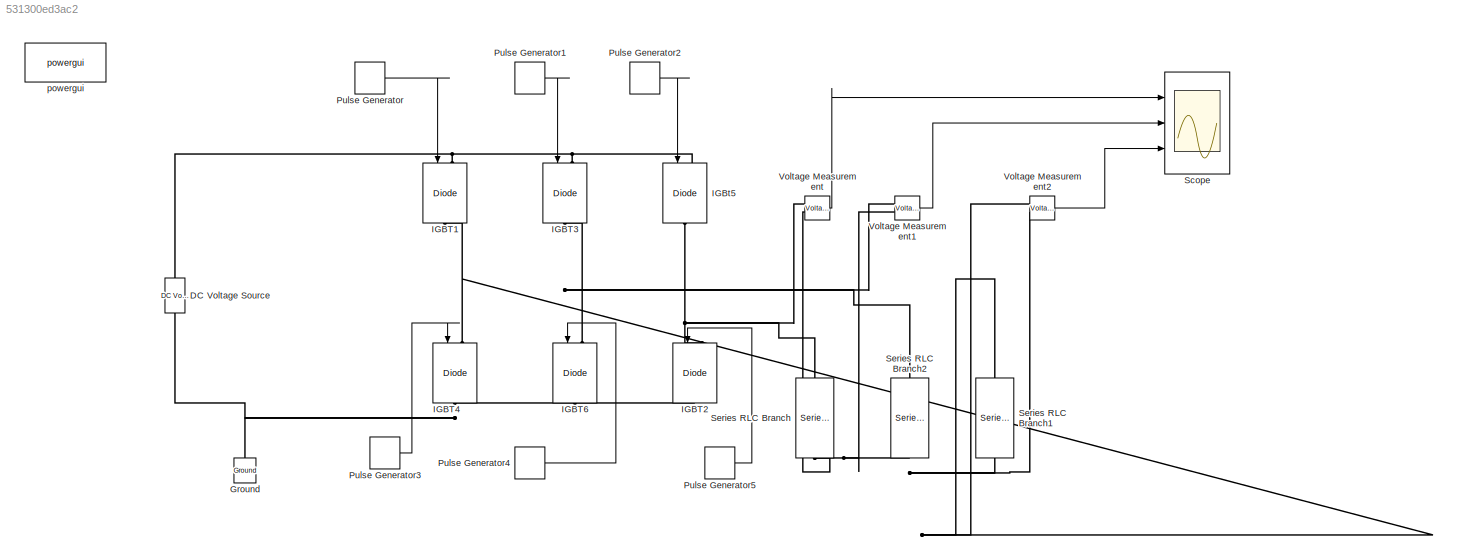
MODEL slx_531300ed3ac2
KIND model
CONFIG AbsTol = auto
CONFIG EnableMultiTasking = off
CONFIG FixedStep = auto
CONFIG MaxStep = auto
CONFIG MinStep = auto
CONFIG RelTol = 1e-3
CONFIG SampleTimeConstraint = Unconstrained
CONFIG Solver = VariableStepAuto
CONFIG SolverName = VariableStepAuto
CONFIG StartTime = 0.0
CONFIG StopTime = 1.0
BLOCK [Reference] DC Voltage Source  REF=powerlib/Electrical
Sources/DC Voltage Source
  Ports = [0, 0, 0, 0, 0, 1, 1]
  SourceBlock = powerlib/Electrical\nSources/DC Voltage Source
  SourceProductBaseCode = PS
  SourceProductName = Simscape Electrical
  SourceType = DC Voltage Source
BLOCK [Reference] Ground  REF=powerlib/Elements/Ground
  Ports = [0, 0, 0, 0, 0, 1]
  SourceBlock = powerlib/Elements/Ground
  SourceProductBaseCode = PS
  SourceProductName = Simscape Electrical
  SourceType = Ground
BLOCK [Reference] IGBT1  REF=powerlib/Power
Electronics/IGBT//Diode
  Ports = [1, 0, 0, 0, 0, 1, 1]
  SourceBlock = powerlib/Power\nElectronics/IGBT//Diode
  SourceProductBaseCode = PS
  SourceProductName = Simscape Electrical
  SourceType = IGBT/Diode
BLOCK [Reference] IGBT2  REF=powerlib/Power
Electronics/IGBT//Diode
  Ports = [1, 0, 0, 0, 0, 1, 1]
  SourceBlock = powerlib/Power\nElectronics/IGBT//Diode
  SourceProductBaseCode = PS
  SourceProductName = Simscape Electrical
  SourceType = IGBT/Diode
BLOCK [Reference] IGBT3  REF=powerlib/Power
Electronics/IGBT//Diode
  Ports = [1, 0, 0, 0, 0, 1, 1]
  SourceBlock = powerlib/Power\nElectronics/IGBT//Diode
  SourceProductBaseCode = PS
  SourceProductName = Simscape Electrical
  SourceType = IGBT/Diode
BLOCK [Reference] IGBT4  REF=powerlib/Power
Electronics/IGBT//Diode
  Ports = [1, 0, 0, 0, 0, 1, 1]
  SourceBlock = powerlib/Power\nElectronics/IGBT//Diode
  SourceProductBaseCode = PS
  SourceProductName = Simscape Electrical
  SourceType = IGBT/Diode
BLOCK [Reference] IGBT6  REF=powerlib/Power
Electronics/IGBT//Diode
  Ports = [1, 0, 0, 0, 0, 1, 1]
  SourceBlock = powerlib/Power\nElectronics/IGBT//Diode
  SourceProductBaseCode = PS
  SourceProductName = Simscape Electrical
  SourceType = IGBT/Diode
BLOCK [Reference] IGBt5  REF=powerlib/Power
Electronics/IGBT//Diode
  Ports = [1, 0, 0, 0, 0, 1, 1]
  SourceBlock = powerlib/Power\nElectronics/IGBT//Diode
  SourceProductBaseCode = PS
  SourceProductName = Simscape Electrical
  SourceType = IGBT/Diode
BLOCK [DiscretePulseGenerator] Pulse Generator
  Period = 2e-3
  Ports = [0, 1]
  PulseType = Time based
  PulseWidth = 50
BLOCK [DiscretePulseGenerator] Pulse Generator1
  Period = 2e-3
  PhaseDelay = 2e-3*(1/3)
  Ports = [0, 1]
  PulseType = Time based
  PulseWidth = 50
BLOCK [DiscretePulseGenerator] Pulse Generator2
  Period = 2e-3
  PhaseDelay = 2e-3*(2/3)
  Ports = [0, 1]
  PulseType = Time based
  PulseWidth = 50
BLOCK [DiscretePulseGenerator] Pulse Generator3
  Period = 2e-3
  PhaseDelay = 2e-3*(1/2)
  Ports = [0, 1]
  PulseType = Time based
  PulseWidth = 50
BLOCK [DiscretePulseGenerator] Pulse Generator4
  Period = 2e-3
  PhaseDelay = 2e-3*(5/6)
  Ports = [0, 1]
  PulseType = Time based
  PulseWidth = 50
BLOCK [DiscretePulseGenerator] Pulse Generator5
  Period = 2e-3
  PhaseDelay = 2e-3*(1/6)
  Ports = [0, 1]
  PulseType = Time based
  PulseWidth = 50
BLOCK [Scope] Scope
  Floating = off
  NumInputPorts = 3
  Ports = [3]
  ScopeSpecificationString = Simulink.scopes.TimeScopeBlockCfg('CurrentConfiguration', extmgr.ConfigurationSet(extmgr.Configuration('Core','General UI',true,'FigureColor',[0 0 0]),extmgr.Configuration('Core','Source UI',true),extmgr.Configuration('Sources','WiredSimulink',true),extmgr.Configuration('Visuals','Time Domain',true,'SerializedDisplays',{struct('MinYLimReal','-68.48351','MaxYLimReal','67.39118','YLabelReal','','Min...<+3439ch>
BLOCK [Reference] Series RLC Branch  REF=powerlib/Elements/Series RLC Branch
  Ports = [0, 0, 0, 0, 0, 1, 1]
  SourceBlock = powerlib/Elements/Series RLC Branch
  SourceProductBaseCode = PS
  SourceProductName = Simscape Electrical
  SourceType = Series RLC Branch
BLOCK [Reference] Series RLC Branch1  REF=powerlib/Elements/Series RLC Branch
  Ports = [0, 0, 0, 0, 0, 1, 1]
  SourceBlock = powerlib/Elements/Series RLC Branch
  SourceProductBaseCode = PS
  SourceProductName = Simscape Electrical
  SourceType = Series RLC Branch
BLOCK [Reference] Series RLC Branch2  REF=powerlib/Elements/Series RLC Branch
  Ports = [0, 0, 0, 0, 0, 1, 1]
  SourceBlock = powerlib/Elements/Series RLC Branch
  SourceProductBaseCode = PS
  SourceProductName = Simscape Electrical
  SourceType = Series RLC Branch
BLOCK [Reference] Voltage Measurement  REF=powerlib/Measurements/Voltage Measurement
  Ports = [0, 1, 0, 0, 0, 2]
  SourceBlock = powerlib/Measurements/Voltage Measurement
  SourceProductBaseCode = PS
  SourceProductName = Simscape Electrical
  SourceType = Voltage Measurement
  UserDataPersistent = on
BLOCK [Reference] Voltage Measurement1  REF=powerlib/Measurements/Voltage Measurement
  Ports = [0, 1, 0, 0, 0, 2]
  SourceBlock = powerlib/Measurements/Voltage Measurement
  SourceProductBaseCode = PS
  SourceProductName = Simscape Electrical
  SourceType = Voltage Measurement
  UserDataPersistent = on
BLOCK [Reference] Voltage Measurement2  REF=powerlib/Measurements/Voltage Measurement
  Ports = [0, 1, 0, 0, 0, 2]
  SourceBlock = powerlib/Measurements/Voltage Measurement
  SourceProductBaseCode = PS
  SourceProductName = Simscape Electrical
  SourceType = Voltage Measurement
  UserDataPersistent = on
BLOCK [Reference] powergui  REF=powerlib/powergui
  Ports = []
  Priority = 1
  SourceBlock = powerlib/powergui
  SourceProductBaseCode = PS
  SourceProductName = Simscape Electrical
  SourceType = PSB option menu block
LINE Pulse Generator1:1 -> IGBT3:1
LINE Pulse Generator2:1 -> IGBt5:1
LINE Pulse Generator3:1 -> IGBT4:1
LINE Pulse Generator4:1 -> IGBT6:1
LINE Pulse Generator5:1 -> IGBT2:1
LINE Pulse Generator:1 -> IGBT1:1
LINE Voltage Measurement1:1 -> Scope:2
LINE Voltage Measurement2:1 -> Scope:3
LINE Voltage Measurement:1 -> Scope:1
PNET net1: DC Voltage Source:LConn1 -- Ground:LConn1 -- IGBT2:RConn1 -- IGBT4:RConn1 -- IGBT6:RConn1
PNET net2: DC Voltage Source:RConn1 -- IGBT1:LConn1 -- IGBT3:LConn1 -- IGBt5:LConn1
PNET net3: IGBT1:RConn1 -- IGBT4:LConn1 -- Series RLC Branch1:LConn1 -- Voltage Measurement2:LConn1
PNET net4: IGBT2:LConn1 -- IGBt5:RConn1 -- Series RLC Branch:LConn1 -- Voltage Measurement:LConn1
PNET net5: IGBT3:RConn1 -- IGBT6:LConn1 -- Series RLC Branch2:LConn1 -- Voltage Measurement1:LConn1
PNET net6: Series RLC Branch1:RConn1 -- Series RLC Branch2:RConn1 -- Series RLC Branch:RConn1 -- Voltage Measurement1:LConn2 -- Voltage Measurement2:LConn2 -- Voltage Measurement:LConn2
note: PNET lines group multi-terminal physical nets as a canonical sorted terminal list (undirected conserving connections); 2-terminal nets keep the pairwise PLINE form
